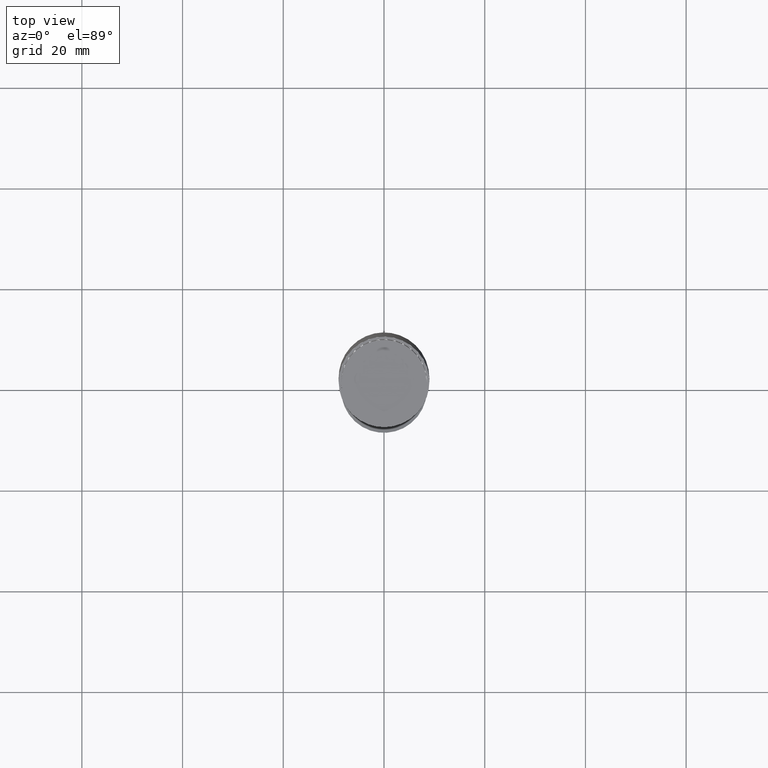
[diagram: clean part render]
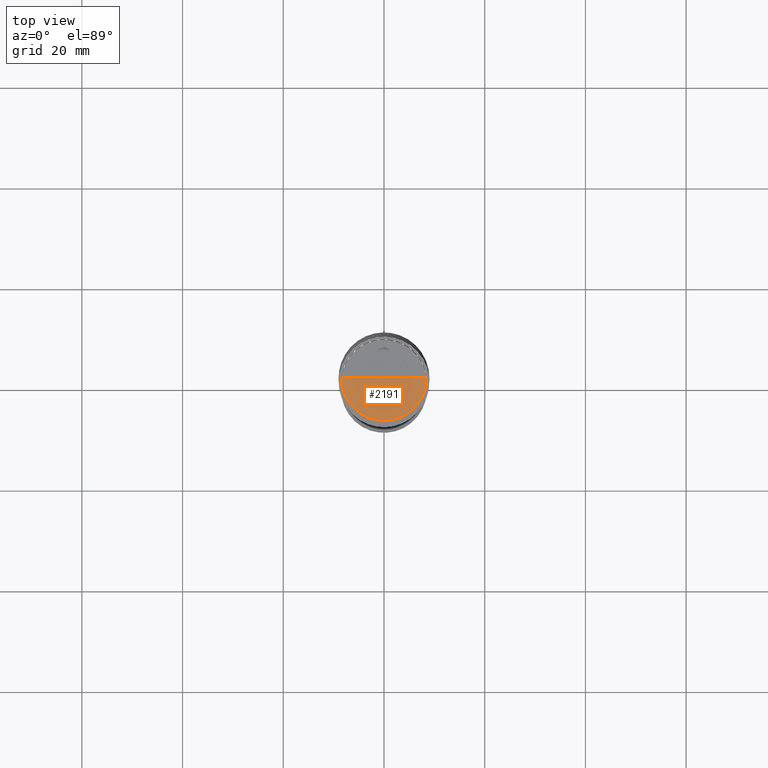
[diagram: same view with one face highlighted and labeled with its STEP entity id]
A machine part, top view. The second image highlights one B-rep face of the part: STEP entity #2191.
In plain terms, the highlighted face is a freeform B-spline surface patch.
Its self-contained STEP definition (entity closure, byte-faithful):
#1794=CARTESIAN_POINT('',(8.5,0.0,48.0));
#1798=CARTESIAN_POINT('',(-8.5,0.0,48.0));
#1799=CARTESIAN_POINT('',(0.0,0.0,48.0));
#1812=CARTESIAN_POINT('',(-8.5,-8.5,48.0));
#1813=CARTESIAN_POINT('',(0.0,-8.5,48.0));
#1814=CARTESIAN_POINT('',(8.5,-8.5,48.0));
#2176=(
BOUNDED_SURFACE()
B_SPLINE_SURFACE(1,2,(
(#1798,#1812,#1813,#1814,#1794),
(#1799,#1799,#1799,#1799,#1799)
), .UNSPECIFIED.,.F.,.F.,.F.)
B_SPLINE_SURFACE_WITH_KNOTS((2,2),(3,2,3),(
0.0,1.0),(
0.0,0.5,1.0), .UNSPECIFIED.)
GEOMETRIC_REPRESENTATION_ITEM()
RATIONAL_B_SPLINE_SURFACE(((1.0,0.707106781187,1.0,0.707106781187,1.0),
(1.0,0.707106781187,1.0,0.707106781187,1.0)
))
REPRESENTATION_ITEM('')
SURFACE()
);
#2177=(
BOUNDED_CURVE()
B_SPLINE_CURVE(2,(#1794,#1814,#1813,#1812,#1798),.UNSPECIFIED.,.F.,.F.)
B_SPLINE_CURVE_WITH_KNOTS((3,2,3),
(0.0,0.5,1.0),.UNSPECIFIED.)
CURVE()
GEOMETRIC_REPRESENTATION_ITEM()
RATIONAL_B_SPLINE_CURVE((1.0,0.707106781187,1.0,0.707106781187,1.0))
REPRESENTATION_ITEM('')
);
#2178=(
BOUNDED_CURVE()
B_SPLINE_CURVE(1,(#1798,#1799),.UNSPECIFIED.,.F.,.F.)
B_SPLINE_CURVE_WITH_KNOTS((2,2),
(0.0,1.0),.UNSPECIFIED.)
CURVE()
GEOMETRIC_REPRESENTATION_ITEM()
RATIONAL_B_SPLINE_CURVE((1.0,1.0))
REPRESENTATION_ITEM('')
);
#2179=(
BOUNDED_CURVE()
B_SPLINE_CURVE(1,(#1799,#1794),.UNSPECIFIED.,.F.,.F.)
B_SPLINE_CURVE_WITH_KNOTS((2,2),
(0.0,1.0),.UNSPECIFIED.)
CURVE()
GEOMETRIC_REPRESENTATION_ITEM()
RATIONAL_B_SPLINE_CURVE((1.0,1.0))
REPRESENTATION_ITEM('')
);
#2180=VERTEX_POINT('',#1794);
#2181=VERTEX_POINT('',#1798);
#2182=VERTEX_POINT('',#1799);
#2183=EDGE_CURVE('',#2180,#2181,#2177,.T.);
#2184=EDGE_CURVE('',#2181,#2182,#2178,.T.);
#2185=EDGE_CURVE('',#2182,#2180,#2179,.T.);
#2186=ORIENTED_EDGE('',*,*,#2183,.T.);
#2187=ORIENTED_EDGE('',*,*,#2184,.T.);
#2188=ORIENTED_EDGE('',*,*,#2185,.T.);
#2189=EDGE_LOOP('',(#2186,#2187,#2188));
#2190=FACE_OUTER_BOUND('',#2189,.T.);
#2191=ADVANCED_FACE('',(#2190),#2176,.T.);